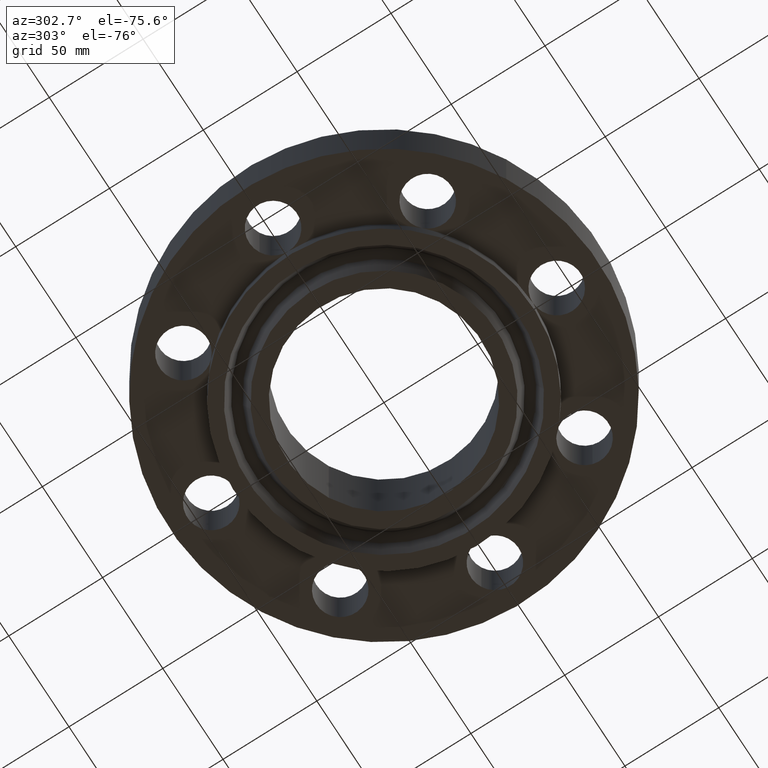
[diagram: clean part render]
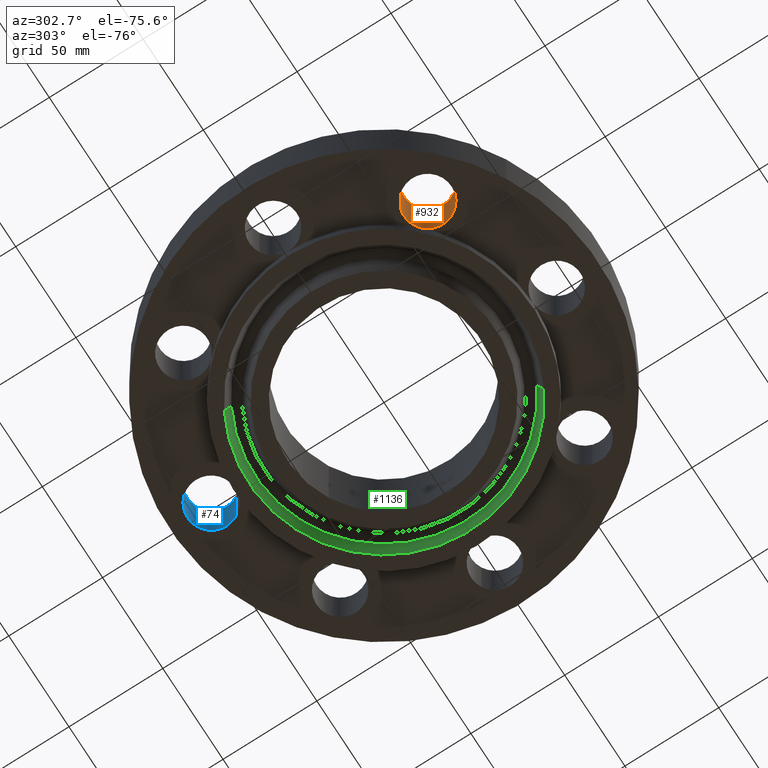
[diagram: same view with three faces highlighted in distinct colors, each labeled with its STEP entity id]
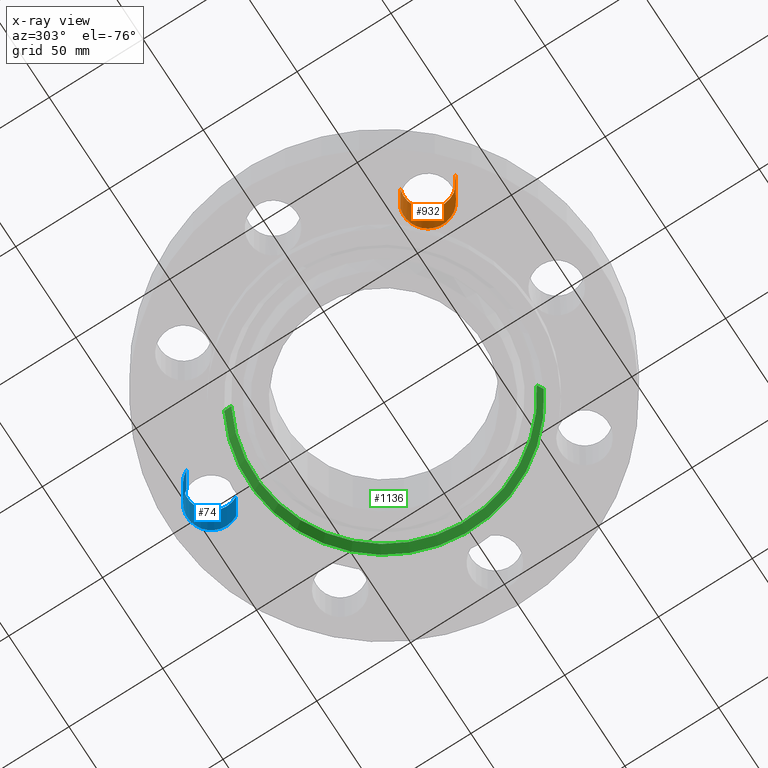
[diagram: x-ray of the same camera — body ghosted, the three highlighted faces saturated]
A machine part, auxiliary view with three faces highlighted in distinct colors.
The next image is the same camera in x-ray (body ghosted, the three faces saturated) — at least one of them is partly hidden behind the body in this view.
Their STEP definitions:

[orange] entity #932 — the highlighted cylindrical surface (edge-blend (fillet) strip) has radius 12.7 mm, axis along (0, 0, -1).
#577=AXIS2_PLACEMENT_3D('Circle Axis2P3D',#575,#576,$) ;
#591=AXIS2_PLACEMENT_3D('Circle Axis2P3D',#589,#590,$) ;
#892=AXIS2_PLACEMENT_3D('Cylinder Axis2P3D',#889,#890,#891) ;
#922=AXIS2_PLACEMENT_3D('Circle Axis2P3D',#920,#921,$) ;
#396=CARTESIAN_POINT('Vertex',(-2.20970869122,-2.20970869122,0.)) ;
#575=CARTESIAN_POINT('Axis2P3D Location',(-2.56326208181,-2.56326208181,0.)) ;
#579=CARTESIAN_POINT('Vertex',(-2.70403184738,-2.08348726682,0.)) ;
#586=CARTESIAN_POINT('Vertex',(-2.42249231624,-3.04303689681,0.)) ;
#589=CARTESIAN_POINT('Axis2P3D Location',(-2.56326208181,-2.56326208181,0.)) ;
#889=CARTESIAN_POINT('Axis2P3D Location',(-2.56326208181,-2.56326208181,1.37606299213)) ;
#894=CARTESIAN_POINT('Line Origine',(-2.42249231624,-3.04303689681,0.690000000003)) ;
#898=CARTESIAN_POINT('Vertex',(-2.42249231624,-3.04303689681,1.38000000001)) ;
#901=CARTESIAN_POINT('Line Origine',(-2.70403184738,-2.08348726682,0.690000000003)) ;
#905=CARTESIAN_POINT('Vertex',(-2.70403184738,-2.08348726682,1.38000000001)) ;
#920=CARTESIAN_POINT('Axis2P3D Location',(-2.56326208181,-2.56326208181,1.38000000001)) ;
#576=DIRECTION('Axis2P3D Direction',(0.,0.,-0.0393700787402)) ;
#590=DIRECTION('Axis2P3D Direction',(0.,0.,-0.0393700787402)) ;
#890=DIRECTION('Axis2P3D Direction',(0.,0.,-0.0393700787402)) ;
#891=DIRECTION('Axis2P3D XDirection',(-0.0110842335096,0.0377775444876,0.)) ;
#895=DIRECTION('Vector Direction',(0.,0.,-0.0393700787402)) ;
#902=DIRECTION('Vector Direction',(0.,0.,-0.0393700787402)) ;
#921=DIRECTION('Axis2P3D Direction',(0.,0.,-0.0393700787402)) ;
#896=VECTOR('Line Direction',#895,0.0393700787402) ;
#903=VECTOR('Line Direction',#902,0.0393700787402) ;
#926=ORIENTED_EDGE('',*,*,#907,.F.) ;
#927=ORIENTED_EDGE('',*,*,#581,.T.) ;
#928=ORIENTED_EDGE('',*,*,#593,.T.) ;
#929=ORIENTED_EDGE('',*,*,#900,.T.) ;
#930=ORIENTED_EDGE('',*,*,#924,.F.) ;
#932=ADVANCED_FACE('PartBody',(#931),#893,.F.) ;
#578=CIRCLE('generated circle',#577,0.500000000002) ;
#592=CIRCLE('generated circle',#591,0.500000000002) ;
#923=CIRCLE('generated circle',#922,0.500000000002) ;
#893=CYLINDRICAL_SURFACE('generated cylinder',#892,0.500000000002) ;
#581=EDGE_CURVE('',#580,#397,#578,.T.) ;
#593=EDGE_CURVE('',#397,#587,#592,.T.) ;
#900=EDGE_CURVE('',#587,#899,#897,.F.) ;
#907=EDGE_CURVE('',#580,#906,#904,.F.) ;
#924=EDGE_CURVE('',#906,#899,#923,.T.) ;
#925=EDGE_LOOP('',(#926,#927,#928,#929,#930)) ;
#931=FACE_OUTER_BOUND('',#925,.T.) ;
#897=LINE('Line',#894,#896) ;
#904=LINE('Line',#901,#903) ;
#397=VERTEX_POINT('',#396) ;
#580=VERTEX_POINT('',#579) ;
#587=VERTEX_POINT('',#586) ;
#899=VERTEX_POINT('',#898) ;
#906=VERTEX_POINT('',#905) ;

[blue] entity #74 — the highlighted cylindrical surface (edge-blend (fillet) strip) has radius 12.7 mm, axis along (0, -0, -1).
#38=AXIS2_PLACEMENT_3D('Cylinder Axis2P3D',#35,#36,#37) ;
#51=AXIS2_PLACEMENT_3D('Circle Axis2P3D',#49,#50,$) ;
#65=AXIS2_PLACEMENT_3D('Circle Axis2P3D',#63,#64,$) ;
#35=CARTESIAN_POINT('Axis2P3D Location',(0.,3.62500000001,1.37606299213)) ;
#40=CARTESIAN_POINT('Line Origine',(-0.438791280947,3.86471276932,0.690000000003)) ;
#44=CARTESIAN_POINT('Vertex',(-0.438791280947,3.86471276932,0.)) ;
#46=CARTESIAN_POINT('Vertex',(-0.438791280947,3.86471276932,1.38000000001)) ;
#49=CARTESIAN_POINT('Axis2P3D Location',(0.,3.62500000001,0.)) ;
#53=CARTESIAN_POINT('Vertex',(0.438791280947,3.38528723071,0.)) ;
#56=CARTESIAN_POINT('Line Origine',(0.438791280947,3.38528723071,0.690000000003)) ;
#60=CARTESIAN_POINT('Vertex',(0.438791280947,3.38528723071,1.38000000001)) ;
#63=CARTESIAN_POINT('Axis2P3D Location',(0.,3.62500000001,1.38000000001)) ;
#36=DIRECTION('Axis2P3D Direction',(0.,-0.,-0.0393700787402)) ;
#37=DIRECTION('Axis2P3D XDirection',(0.0345504945626,-0.0188750212049,0.)) ;
#41=DIRECTION('Vector Direction',(0.,0.,-0.0393700787402)) ;
#50=DIRECTION('Axis2P3D Direction',(0.,-0.,-0.0393700787402)) ;
#57=DIRECTION('Vector Direction',(0.,0.,-0.0393700787402)) ;
#64=DIRECTION('Axis2P3D Direction',(0.,-0.,-0.0393700787402)) ;
#42=VECTOR('Line Direction',#41,0.0393700787402) ;
#58=VECTOR('Line Direction',#57,0.0393700787402) ;
#69=ORIENTED_EDGE('',*,*,#48,.F.) ;
#70=ORIENTED_EDGE('',*,*,#55,.T.) ;
#71=ORIENTED_EDGE('',*,*,#62,.T.) ;
#72=ORIENTED_EDGE('',*,*,#67,.F.) ;
#74=ADVANCED_FACE('PartBody',(#73),#39,.F.) ;
#52=CIRCLE('generated circle',#51,0.500000000002) ;
#66=CIRCLE('generated circle',#65,0.500000000002) ;
#39=CYLINDRICAL_SURFACE('generated cylinder',#38,0.500000000002) ;
#48=EDGE_CURVE('',#45,#47,#43,.F.) ;
#55=EDGE_CURVE('',#45,#54,#52,.T.) ;
#62=EDGE_CURVE('',#54,#61,#59,.F.) ;
#67=EDGE_CURVE('',#47,#61,#66,.T.) ;
#68=EDGE_LOOP('',(#69,#70,#71,#72)) ;
#73=FACE_OUTER_BOUND('',#68,.T.) ;
#43=LINE('Line',#40,#42) ;
#59=LINE('Line',#56,#58) ;
#45=VERTEX_POINT('',#44) ;
#47=VERTEX_POINT('',#46) ;
#54=VERTEX_POINT('',#53) ;
#61=VERTEX_POINT('',#60) ;

[green] entity #1136 — the highlighted conical surface has half-angle 23 deg.
#997=AXIS2_PLACEMENT_3D('Circle Axis2P3D',#995,#996,$) ;
#1071=AXIS2_PLACEMENT_3D('Cone Axis2P3D',#1068,#1069,#1070) ;
#1092=AXIS2_PLACEMENT_3D('Circle Axis2P3D',#1090,#1091,$) ;
#990=CARTESIAN_POINT('Vertex',(1.35587535137,-2.48191318286,-0.312500000001)) ;
#992=CARTESIAN_POINT('Vertex',(-1.35587535137,2.48191318286,-0.312500000001)) ;
#995=CARTESIAN_POINT('Axis2P3D Location',(-2.79741234551E-016,-2.79741234551E-016,-0.312500000001)) ;
#1037=CARTESIAN_POINT('Vertex',(-1.29615497698,2.37259577081,-0.0190396522348)) ;
#1039=CARTESIAN_POINT('Vertex',(1.29615497698,-2.37259577081,-0.0190396522348)) ;
#1068=CARTESIAN_POINT('Axis2P3D Location',(0.,0.,-0.0190396522348)) ;
#1073=CARTESIAN_POINT('Line Origine',(-1.32601516418,2.42725447683,-0.165769826118)) ;
#1078=CARTESIAN_POINT('Line Origine',(1.32601516418,-2.42725447683,-0.165769826118)) ;
#1090=CARTESIAN_POINT('Axis2P3D Location',(0.,0.,-0.0190396522348)) ;
#996=DIRECTION('Axis2P3D Direction',(0.,0.,-0.0393700787402)) ;
#1069=DIRECTION('Axis2P3D Direction',(-0.,-0.,-0.0393700787402)) ;
#1070=DIRECTION('Axis2P3D XDirection',(-0.0188750212049,0.0345504945626,0.)) ;
#1074=DIRECTION('Vector Direction',(-0.00737505833565,0.0134999537303,-0.0362403485611)) ;
#1079=DIRECTION('Vector Direction',(0.00737505833565,-0.0134999537303,-0.0362403485611)) ;
#1091=DIRECTION('Axis2P3D Direction',(0.,0.,0.0393700787402)) ;
#1075=VECTOR('Line Direction',#1074,0.0393700787402) ;
#1080=VECTOR('Line Direction',#1079,0.0393700787402) ;
#1131=ORIENTED_EDGE('',*,*,#999,.T.) ;
#1132=ORIENTED_EDGE('',*,*,#1082,.T.) ;
#1133=ORIENTED_EDGE('',*,*,#1094,.T.) ;
#1134=ORIENTED_EDGE('',*,*,#1077,.F.) ;
#1136=ADVANCED_FACE('PartBody',(#1135),#1072,.F.) ;
#998=CIRCLE('generated circle',#997,2.82812500001) ;
#1093=CIRCLE('generated circle',#1092,2.70355847283) ;
#1072=CONICAL_SURFACE('Cone',#1071,2.70355847283,0.401425727959) ;
#999=EDGE_CURVE('',#993,#991,#998,.T.) ;
#1077=EDGE_CURVE('',#993,#1038,#1076,.F.) ;
#1082=EDGE_CURVE('',#991,#1040,#1081,.F.) ;
#1094=EDGE_CURVE('',#1040,#1038,#1093,.T.) ;
#1130=EDGE_LOOP('',(#1131,#1132,#1133,#1134)) ;
#1135=FACE_OUTER_BOUND('',#1130,.T.) ;
#1076=LINE('Line',#1073,#1075) ;
#1081=LINE('Line',#1078,#1080) ;
#991=VERTEX_POINT('',#990) ;
#993=VERTEX_POINT('',#992) ;
#1038=VERTEX_POINT('',#1037) ;
#1040=VERTEX_POINT('',#1039) ;